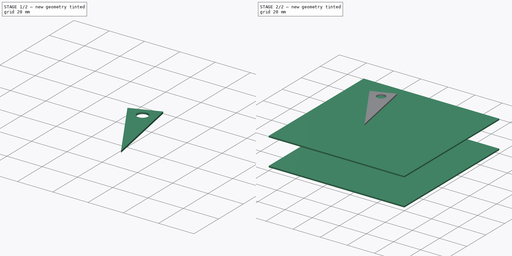
[diagram: build sequence overview — one tinted view per stage of 2, left to right]
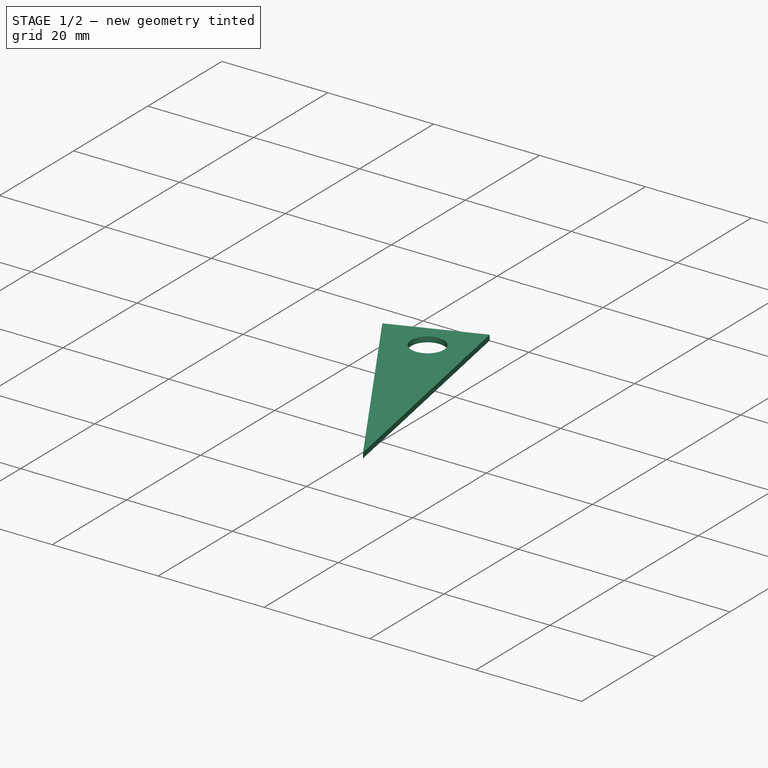
[diagram: stage 1 of 2 — iso view after this stage's code; geometry added in this stage tinted green]
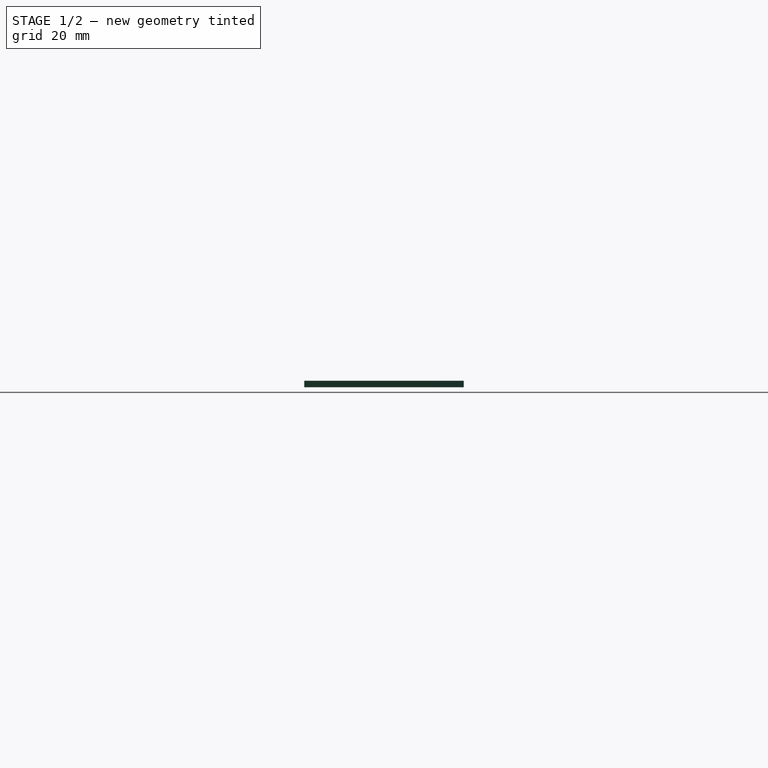
[diagram: stage 1 of 2 — front view after this stage's code; geometry added in this stage tinted green]
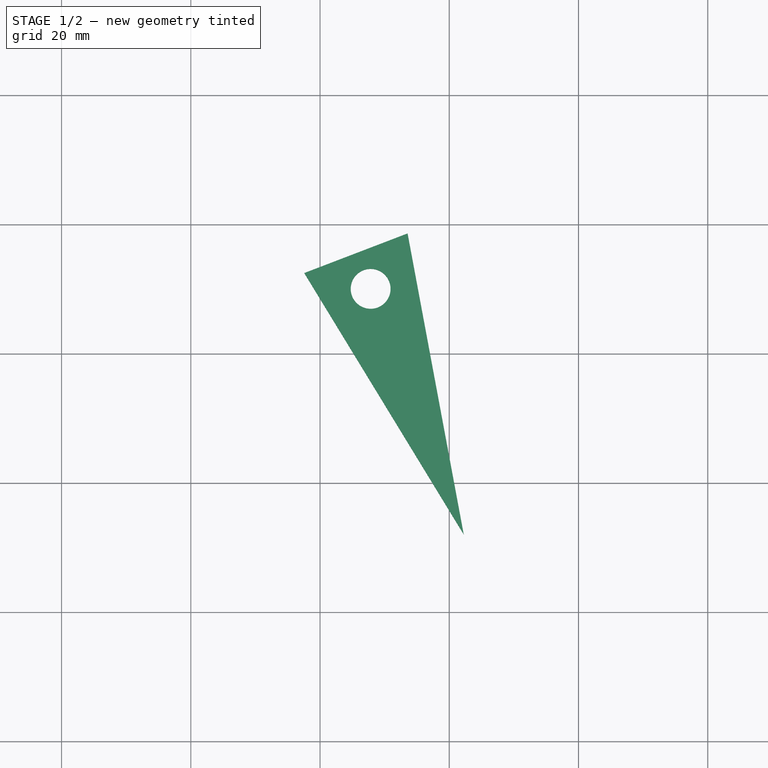
[diagram: stage 1 of 2 — top view after this stage's code; geometry added in this stage tinted green]
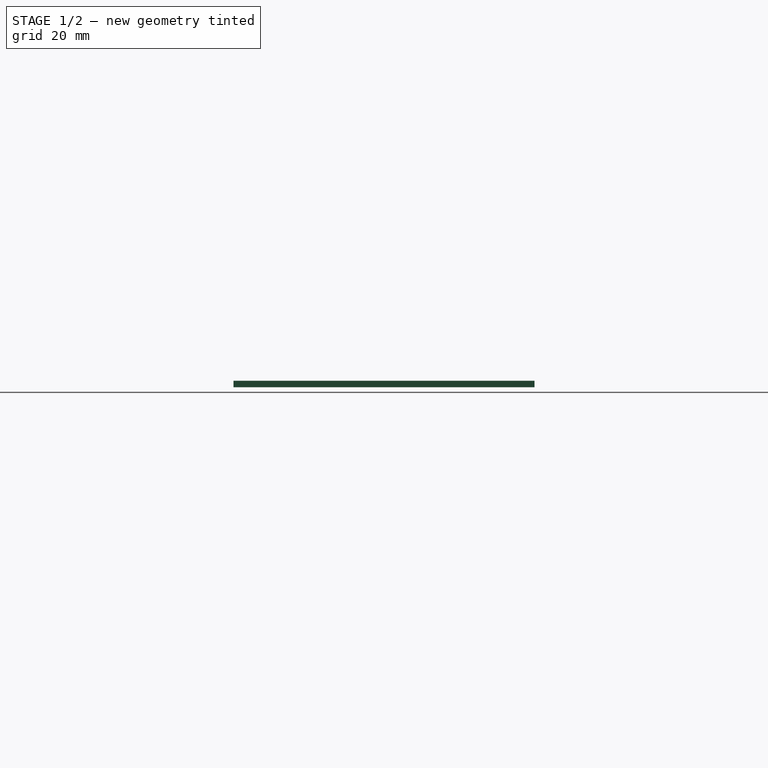
[diagram: stage 1 of 2 — right view after this stage's code; geometry added in this stage tinted green]
FCSTD DOCUMENT  (FreeCAD 0.15R4671 (Git))
Label: gauge
License: All rights reserved
LicenseURL: http://en.wikipedia.org/wiki/All_rights_reserved
objects: Sketcher::SketchObject×3, Part::Box×2, PartDesign::Pad×1, PartDesign::Pocket×1
note: 9 computed .brp shape members not serialized (recipe doc carries the construction recipe); baked Part::Feature solids carry a one-line shape summary decoded from their .brp

FEATURE [Sketcher::SketchObject] Sketch002
  Placement = pos=(0,0,41) rot=(0,0,1;0rad)
  sketch-geometry (4):
    g0: LineSegment StartX=4.69171 StartY=94.9371 StartZ=0 EndX=95.0402 EndY=94.9371 EndZ=0
    g1: LineSegment StartX=95.0402 StartY=94.9371 StartZ=0 EndX=95.0402 EndY=4.58862 EndZ=0
    g2: LineSegment StartX=95.0402 StartY=4.58862 StartZ=0 EndX=4.69171 EndY=4.58862 EndZ=0
    g3: LineSegment StartX=4.69171 StartY=4.58862 StartZ=0 EndX=4.69171 EndY=94.9371 EndZ=0
  constraints (8):
    c: Coincident(g0,g1)
    c: Coincident(g1,g2)
    c: Coincident(g2,g3)
    c: Coincident(g3,g0)
    c: Horizontal(g0)
    c: Horizontal(g2)
    c: Vertical(g1)
    c: Vertical(g3)
FEATURE [Sketcher::SketchObject] Sketch003
  Placement = pos=(0,0,40) rot=(0,0,1;0rad)
  sketch-geometry (4):
    g0: LineSegment StartX=62.2391 StartY=12.0537 StartZ=0 EndX=53.5472 EndY=58.6502 EndZ=0
    g1: LineSegment StartX=37.5548 StartY=52.5194 StartZ=0 EndX=62.2391 EndY=12.0537 EndZ=0
    g2: Circle [constr] CenterX=53.6135 CenterY=34.5537 CenterZ=0 NormalX=0 NormalY=0 NormalZ=1 Radius=24.0967
    g3: LineSegment StartX=53.5472 StartY=58.6502 StartZ=0 EndX=37.5548 EndY=52.5194 EndZ=0
  constraints (7):
    c: Coincident(g1,g0)
    c: Equal(g0,g1)
    c: PointOnObject(g0,g2)
    c: PointOnObject(g1,g2)
    c: PointOnObject(g1,g2)
    c: Coincident(g3,g0)
    c: Coincident(g3,g1)
FEATURE [PartDesign::Pad] Pad
  Length = 1
  Length2 = 100
  Placement = pos=(0,0,40) rot=(0,0,1;0rad)
  Sketch = -> Sketch003
  Type = 0
FEATURE [Sketcher::SketchObject] Sketch004
  Placement = pos=(0,0,41) rot=(0,0,1;0rad)
  Support = -> Pad [Face5]
  sketch-geometry (1):
    g0: Circle CenterX=47.8289 CenterY=50.0709 CenterZ=0 NormalX=0 NormalY=0 NormalZ=1 Radius=3.0838
FEATURE [PartDesign::Pocket] Pocket003
  Length = 1
  Placement = pos=(0,0,40) rot=(0,0,1;0rad)
  Sketch = -> Sketch004
  Type = 0
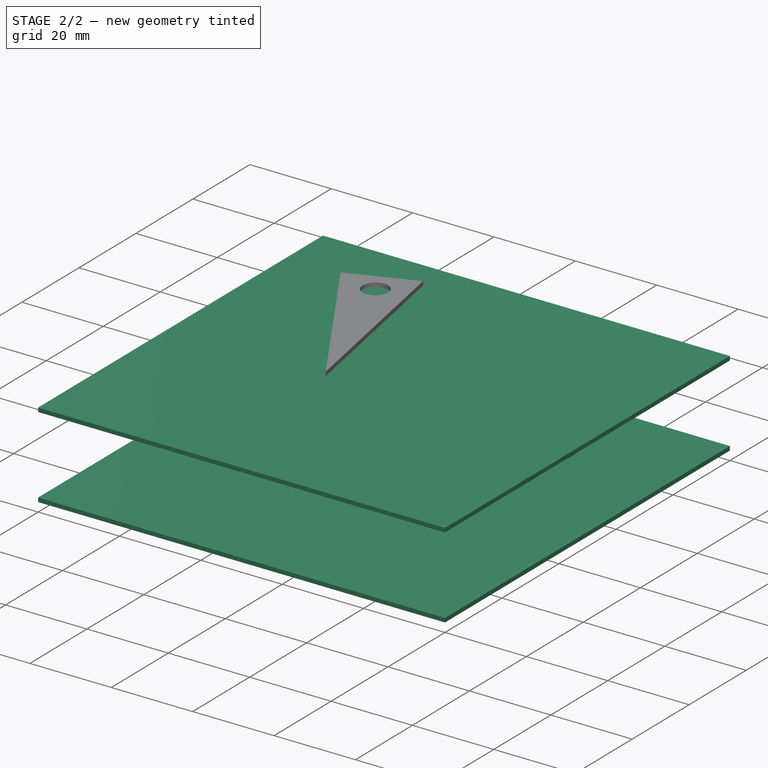
[diagram: stage 2 of 2 — iso view after this stage's code; geometry added in this stage tinted green]
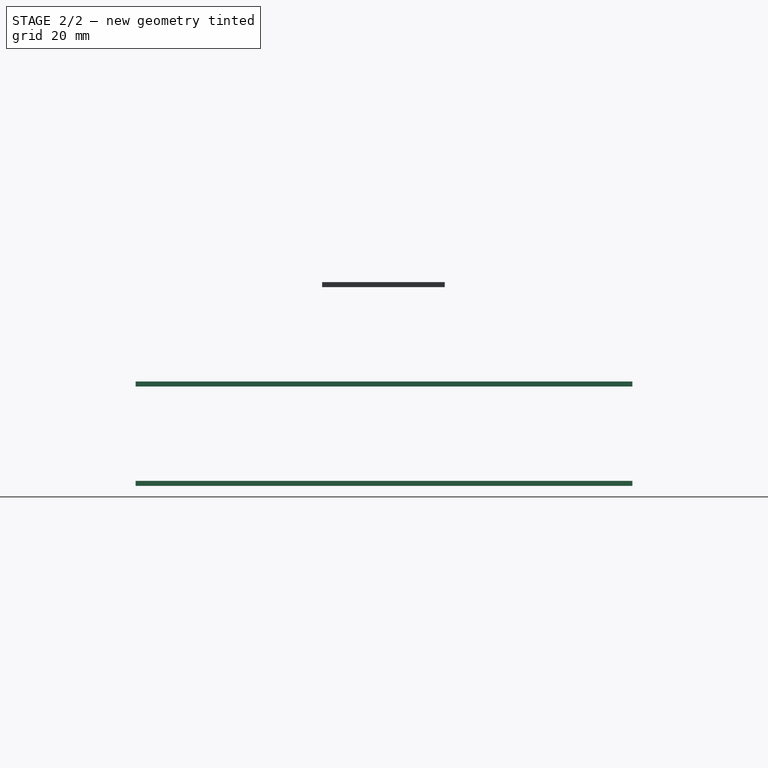
[diagram: stage 2 of 2 — front view after this stage's code; geometry added in this stage tinted green]
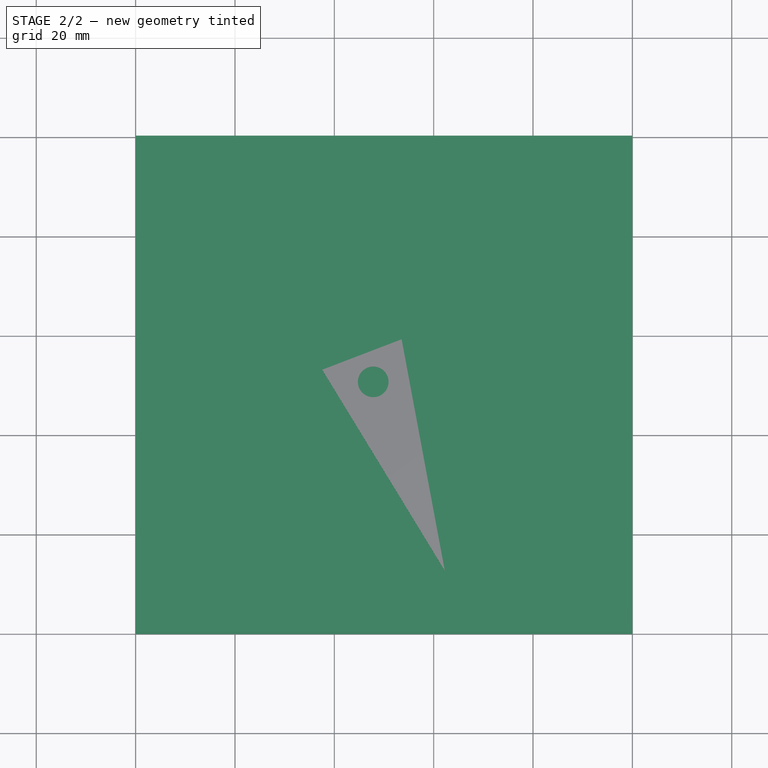
[diagram: stage 2 of 2 — top view after this stage's code; geometry added in this stage tinted green]
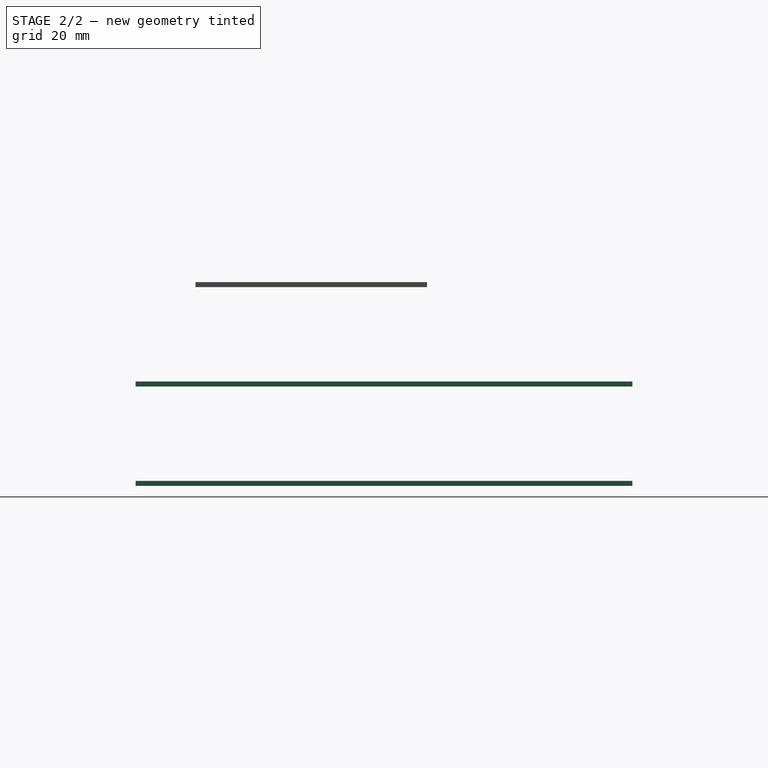
[diagram: stage 2 of 2 — right view after this stage's code; geometry added in this stage tinted green]
FEATURE [Part::Box] Box  label="Cube"
  Height = 1
  Length = 100
  Width = 100
FEATURE [Part::Box] Box001  label="Cube001"
  Height = 1
  Length = 100
  Placement = pos=(0,0,20) rot=(0,0,1;0rad)
  Width = 100
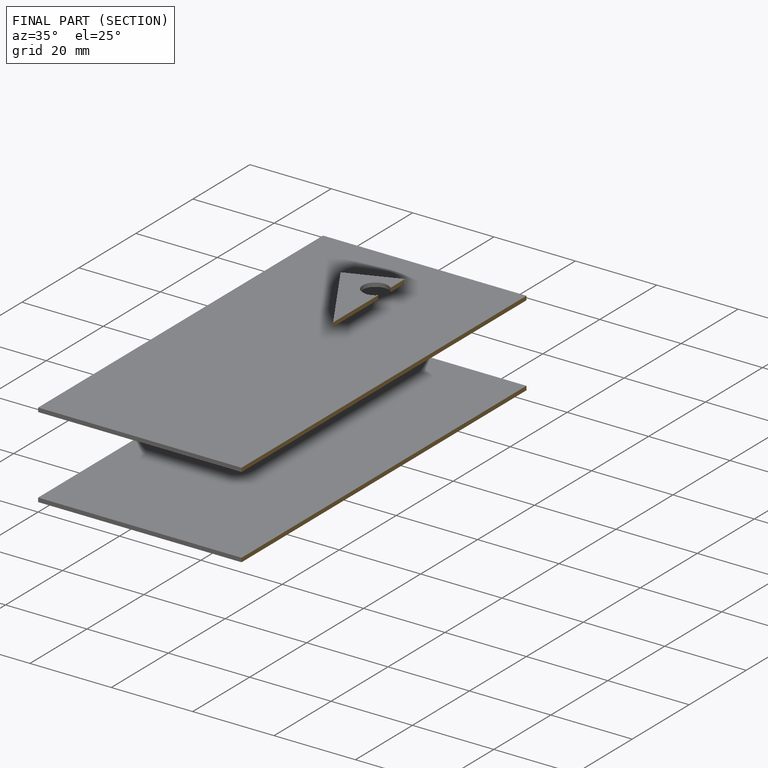
[diagram: finished part — half-section view (interior)]
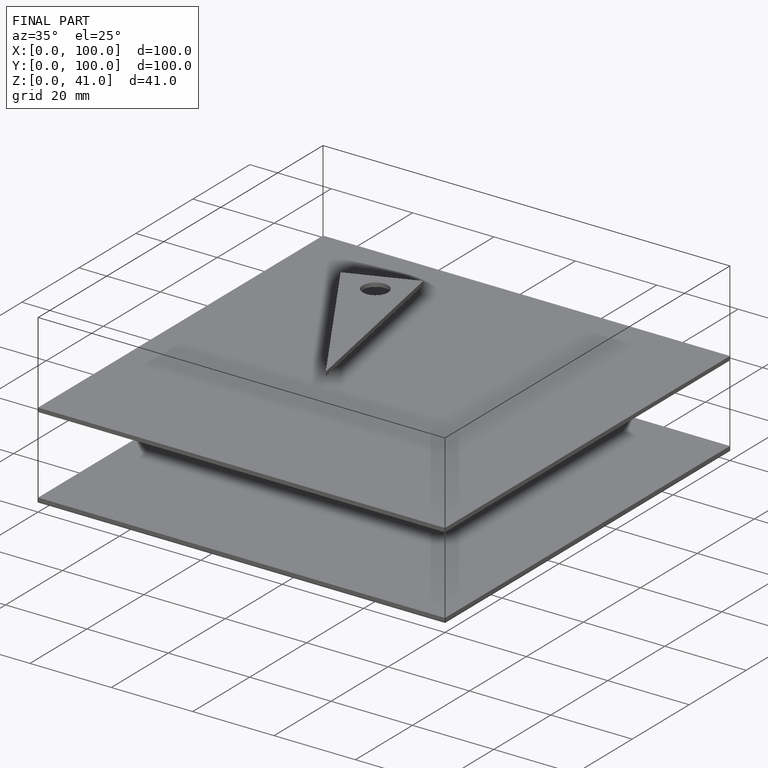
[diagram: finished part — iso view with bounding-box wireframe]
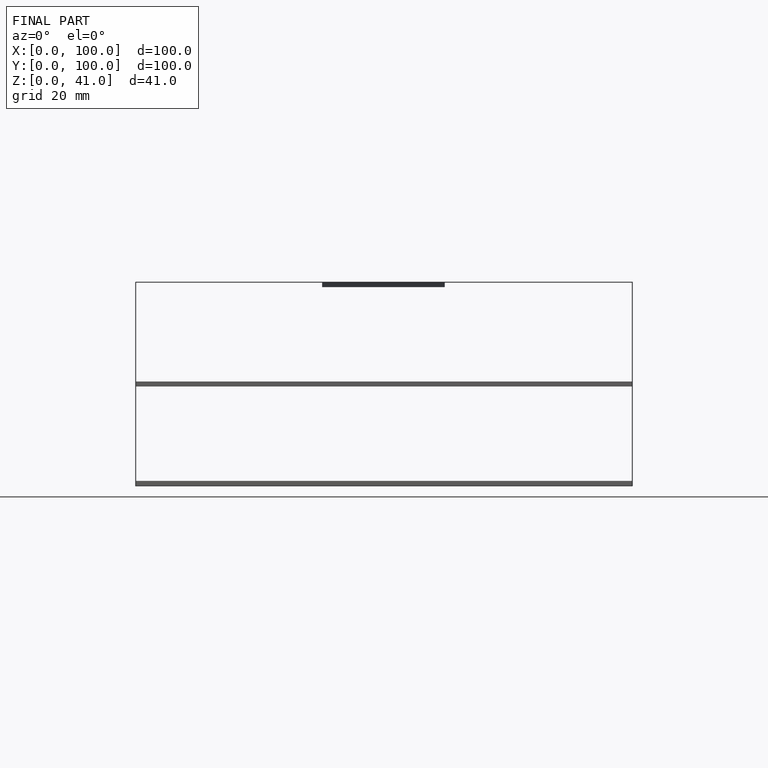
[diagram: finished part — front view with bounding-box wireframe]
